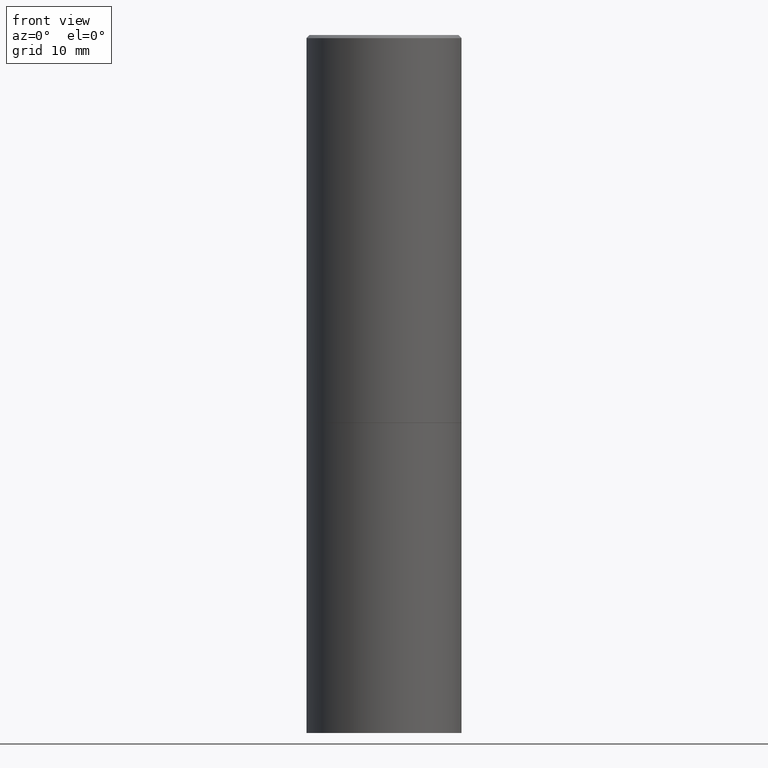
[diagram: clean part render]
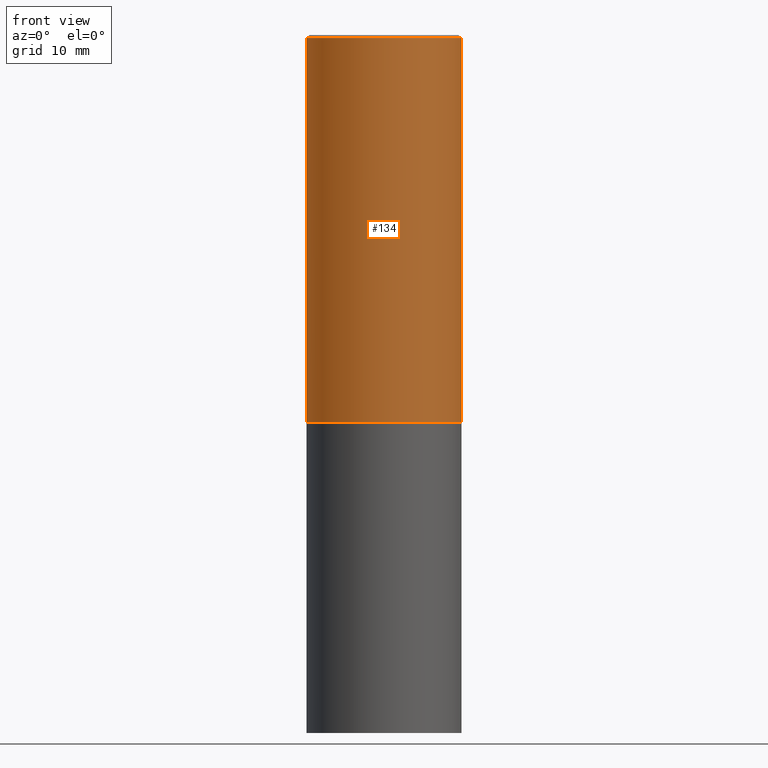
[diagram: same view with one face highlighted and labeled with its STEP entity id]
A machine part, front view. The second image highlights one B-rep face of the part: STEP entity #134.
In plain terms, the highlighted cylindrical surface (partial cylindrical patch) has radius 12.7 mm, axis along (-0, 0, 1).
Its self-contained STEP definition (entity closure, byte-faithful):
#8 = CARTESIAN_POINT ( 'NONE',  ( -0.5000000000000000000, -8.448070674724411945E-16, -2.499000000000000110 ) ) ;
#17 = LINE ( 'NONE', #146, #173 ) ;
#24 = CYLINDRICAL_SURFACE ( 'NONE', #200, 0.4999999999999998335 ) ;
#25 = FACE_OUTER_BOUND ( 'NONE', #223, .T. ) ;
#47 = CARTESIAN_POINT ( 'NONE',  ( 0.5000000000000000000, -1.221669320461215371E-14, -2.499000000000000110 ) ) ;
#65 = DIRECTION ( 'NONE',  ( -2.445468806185136877E-29, 3.491481338843145188E-15, 1.000000000000000000 ) ) ;
#67 = EDGE_CURVE ( 'NONE', #202, #169, #17, .T. ) ;
#70 = ORIENTED_EDGE ( 'NONE', *, *, #217, .T. ) ;
#73 = DIRECTION ( 'NONE',  ( 1.000000000000000000, -6.982962677686267499E-15, 4.876176775795936353E-29 ) ) ;
#97 = CARTESIAN_POINT ( 'NONE',  ( 0.4999999999999997224, -3.500078625662627502E-15, -0.02000000000000011144 ) ) ;
#102 = ORIENTED_EDGE ( 'NONE', *, *, #299, .F. ) ;
#103 = AXIS2_PLACEMENT_3D ( 'NONE', #135, #165, #168 ) ;
#134 = ADVANCED_FACE ( 'NONE', ( #25 ), #24, .T. ) ;
#135 = CARTESIAN_POINT ( 'NONE',  ( 6.111226546656657010E-29, -8.725211865769021935E-15, -2.499000000000000110 ) ) ;
#146 = CARTESIAN_POINT ( 'NONE',  ( 0.4999999999999998335, -3.491481338843132566E-15, 2.438088387897967336E-29 ) ) ;
#155 = DIRECTION ( 'NONE',  ( -2.445468806185136877E-29, 3.491481338843145188E-15, 1.000000000000000000 ) ) ;
#165 = DIRECTION ( 'NONE',  ( -2.445468806185136597E-29, 3.491481338843145583E-15, 1.000000000000000000 ) ) ;
#168 = DIRECTION ( 'NONE',  ( 1.000000000000000000, -6.982962677686265133E-15, 0.000000000000000000 ) ) ;
#169 = VERTEX_POINT ( 'NONE', #97 ) ;
#170 = CIRCLE ( 'NONE', #190, 0.4999999999999997224 ) ;
#173 = VECTOR ( 'NONE', #155, 39.37007874015748143 ) ;
#190 = AXIS2_PLACEMENT_3D ( 'NONE', #208, #320, #203 ) ;
#191 = DIRECTION ( 'NONE',  ( -2.445468806185136597E-29, 3.491481338843145583E-15, 1.000000000000000000 ) ) ;
#200 = AXIS2_PLACEMENT_3D ( 'NONE', #332, #191, #73 ) ;
#202 = VERTEX_POINT ( 'NONE', #47 ) ;
#203 = DIRECTION ( 'NONE',  ( 1.000000000000000000, -6.982962677686266711E-15, 0.000000000000000000 ) ) ;
#208 = CARTESIAN_POINT ( 'NONE',  ( 4.890937612370301184E-31, -6.982962677686329819E-17, -0.02000000000000011144 ) ) ;
#217 = EDGE_CURVE ( 'NONE', #262, #202, #359, .T. ) ;
#221 = CARTESIAN_POINT ( 'NONE',  ( -0.4999999999999998335, 3.552713678800499746E-15, -2.459467545127452330E-29 ) ) ;
#223 = EDGE_LOOP ( 'NONE', ( #102, #70, #314, #234 ) ) ;
#234 = ORIENTED_EDGE ( 'NONE', *, *, #280, .F. ) ;
#248 = LINE ( 'NONE', #221, #277 ) ;
#254 = VERTEX_POINT ( 'NONE', #343 ) ;
#262 = VERTEX_POINT ( 'NONE', #8 ) ;
#277 = VECTOR ( 'NONE', #65, 39.37007874015748143 ) ;
#280 = EDGE_CURVE ( 'NONE', #254, #169, #170, .T. ) ;
#299 = EDGE_CURVE ( 'NONE', #262, #254, #248, .T. ) ;
#314 = ORIENTED_EDGE ( 'NONE', *, *, #67, .T. ) ;
#320 = DIRECTION ( 'NONE',  ( -2.445468806185136597E-29, 3.491481338843145583E-15, 1.000000000000000000 ) ) ;
#332 = CARTESIAN_POINT ( 'NONE',  ( 0.000000000000000000, 0.000000000000000000, 0.000000000000000000 ) ) ;
#343 = CARTESIAN_POINT ( 'NONE',  ( -0.4999999999999997224, 3.421651712066268085E-15, -0.02000000000000011144 ) ) ;
#359 = CIRCLE ( 'NONE', #103, 0.5000000000000000000 ) ;